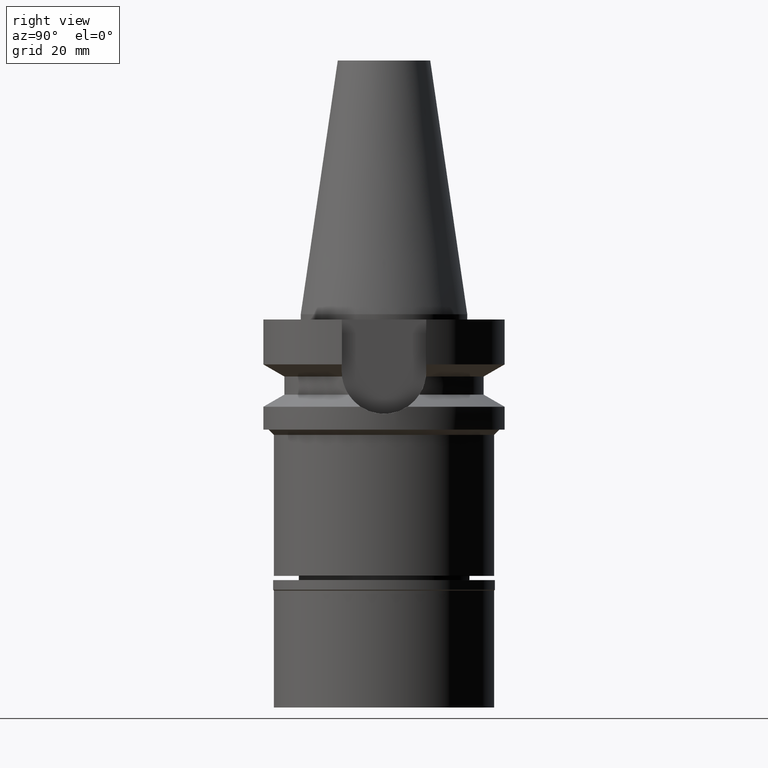
[diagram: clean part render]
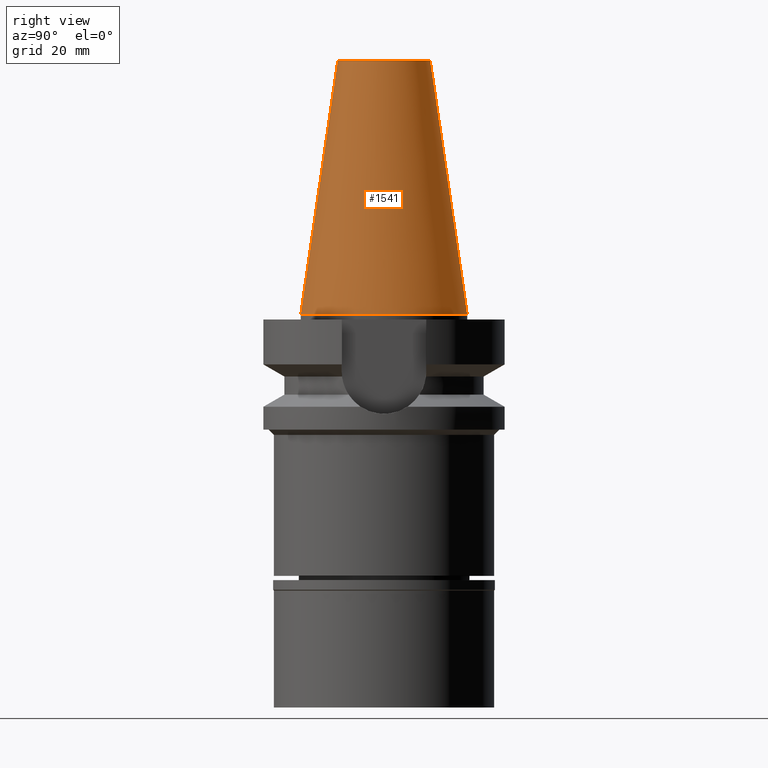
[diagram: same view with one face highlighted and labeled with its STEP entity id]
A machine part, right view. The second image highlights one B-rep face of the part: STEP entity #1541.
In plain terms, the highlighted conical surface has half-angle 8.297 deg.
Its self-contained STEP definition (entity closure, byte-faithful):
#296 = CARTESIAN_POINT ( 'NONE',  ( 0.0000000000000000000, 1.521011324540999938E-14, -3.694822225953000089E-13 ) ) ;
#319 = EDGE_CURVE ( 'NONE', #2151, #2300, #873, .T. ) ;
#364 = AXIS2_PLACEMENT_3D ( 'NONE', #296, #2407, #2110 ) ;
#418 = DIRECTION ( 'NONE',  ( 0.0000000000000000000, 0.1443043893539925626, -0.9895333461855498891 ) ) ;
#504 = DIRECTION ( 'NONE',  ( 0.0000000000000000000, -1.000000000000000000, 0.0000000000000000000 ) ) ;
#704 = CARTESIAN_POINT ( 'NONE',  ( 0.0000000000000000000, 1.521011324540999938E-14, 24.19999999999999929 ) ) ;
#807 = CARTESIAN_POINT ( 'NONE',  ( 0.0000000000000000000, 15.87500000000000000, -1.740829702611999836E-13 ) ) ;
#810 = ORIENTED_EDGE ( 'NONE', *, *, #319, .F. ) ;
#873 = LINE ( 'NONE', #2298, #2060 ) ;
#1015 = EDGE_CURVE ( 'NONE', #2151, #2314, #2171, .T. ) ;
#1062 = DIRECTION ( 'NONE',  ( 0.0000000000000000000, 1.000000000000000000, 0.0000000000000000000 ) ) ;
#1105 = VECTOR ( 'NONE', #1140, 1000.000000000000114 ) ;
#1140 = DIRECTION ( 'NONE',  ( 0.0000000000000000000, -0.1443043893539925626, -0.9895333461855498891 ) ) ;
#1245 = AXIS2_PLACEMENT_3D ( 'NONE', #2920, #1291, #1062 ) ;
#1264 = CONICAL_SURFACE ( 'NONE', #2970, 12.34589586639000025, 0.1448099680379422438 ) ;
#1271 = EDGE_CURVE ( 'NONE', #2314, #1945, #2062, .T. ) ;
#1291 = DIRECTION ( 'NONE',  ( 0.0000000000000000000, 0.0000000000000000000, -1.000000000000000000 ) ) ;
#1470 = EDGE_CURVE ( 'NONE', #2300, #1945, #3023, .T. ) ;
#1541 = ADVANCED_FACE ( 'NONE', ( #2379 ), #1264, .T. ) ;
#1613 = CARTESIAN_POINT ( 'NONE',  ( 0.0000000000000000000, 8.816791732783000768, 48.39999999999999858 ) ) ;
#1736 = CARTESIAN_POINT ( 'NONE',  ( 0.0000000000000000000, -8.816791732783000768, 48.39999999999999858 ) ) ;
#1945 = VERTEX_POINT ( 'NONE', #1994 ) ;
#1994 = CARTESIAN_POINT ( 'NONE',  ( 0.0000000000000000000, -15.87500000000000000, -1.740829702611999836E-13 ) ) ;
#2060 = VECTOR ( 'NONE', #418, 1000.000000000000114 ) ;
#2062 = LINE ( 'NONE', #2562, #1105 ) ;
#2110 = DIRECTION ( 'NONE',  ( 0.0000000000000000000, 1.000000000000000000, 0.0000000000000000000 ) ) ;
#2151 = VERTEX_POINT ( 'NONE', #1613 ) ;
#2171 = CIRCLE ( 'NONE', #1245, 8.816791732783000768 ) ;
#2194 = EDGE_LOOP ( 'NONE', ( #2582, #2304, #2857, #810 ) ) ;
#2298 = CARTESIAN_POINT ( 'NONE',  ( 0.0000000000000000000, 8.816791732783000768, 48.39999999999999858 ) ) ;
#2300 = VERTEX_POINT ( 'NONE', #807 ) ;
#2304 = ORIENTED_EDGE ( 'NONE', *, *, #1271, .T. ) ;
#2314 = VERTEX_POINT ( 'NONE', #1736 ) ;
#2379 = FACE_OUTER_BOUND ( 'NONE', #2194, .T. ) ;
#2407 = DIRECTION ( 'NONE',  ( 0.0000000000000000000, 0.0000000000000000000, -1.000000000000000000 ) ) ;
#2562 = CARTESIAN_POINT ( 'NONE',  ( 0.0000000000000000000, -8.816791732783000768, 48.39999999999999858 ) ) ;
#2582 = ORIENTED_EDGE ( 'NONE', *, *, #1015, .T. ) ;
#2597 = DIRECTION ( 'NONE',  ( 0.0000000000000000000, 0.0000000000000000000, -1.000000000000000000 ) ) ;
#2857 = ORIENTED_EDGE ( 'NONE', *, *, #1470, .F. ) ;
#2920 = CARTESIAN_POINT ( 'NONE',  ( 0.0000000000000000000, 1.521011324540999938E-14, 48.39999999999999858 ) ) ;
#2970 = AXIS2_PLACEMENT_3D ( 'NONE', #704, #2597, #504 ) ;
#3023 = CIRCLE ( 'NONE', #364, 15.87500000000000000 ) ;